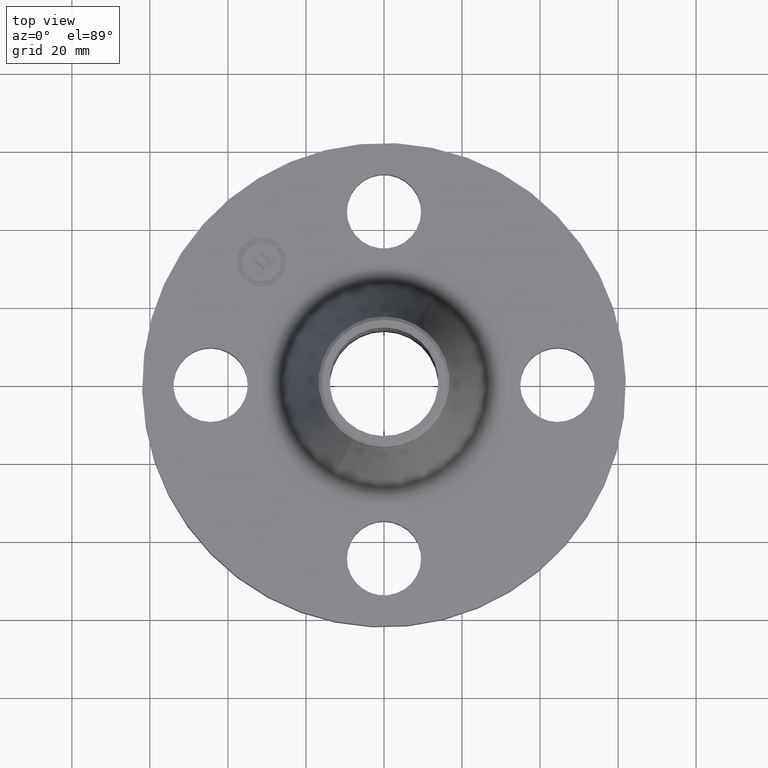
[diagram: clean part render]
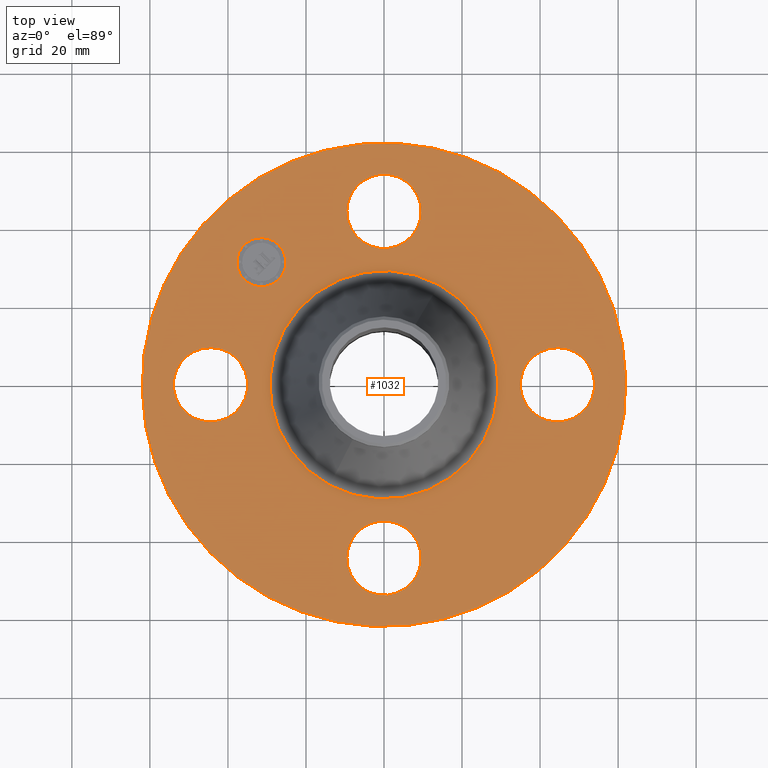
[diagram: same view with one face highlighted and labeled with its STEP entity id]
A machine part, top view. The second image highlights one B-rep face of the part: STEP entity #1032.
In plain terms, the highlighted planar face has unit normal (0, 0, -1).
Its self-contained STEP definition (entity closure, byte-faithful):
#65=AXIS2_PLACEMENT_3D('Circle Axis2P3D',#63,#64,$) ;
#97=AXIS2_PLACEMENT_3D('Circle Axis2P3D',#95,#96,$) ;
#138=AXIS2_PLACEMENT_3D('Circle Axis2P3D',#136,#137,$) ;
#162=AXIS2_PLACEMENT_3D('Circle Axis2P3D',#160,#161,$) ;
#179=AXIS2_PLACEMENT_3D('Circle Axis2P3D',#177,#178,$) ;
#214=AXIS2_PLACEMENT_3D('Circle Axis2P3D',#212,#213,$) ;
#642=AXIS2_PLACEMENT_3D('Circle Axis2P3D',#640,#641,$) ;
#654=AXIS2_PLACEMENT_3D('Circle Axis2P3D',#652,#653,$) ;
#686=AXIS2_PLACEMENT_3D('Circle Axis2P3D',#684,#685,$) ;
#698=AXIS2_PLACEMENT_3D('Circle Axis2P3D',#696,#697,$) ;
#730=AXIS2_PLACEMENT_3D('Circle Axis2P3D',#728,#729,$) ;
#742=AXIS2_PLACEMENT_3D('Circle Axis2P3D',#740,#741,$) ;
#988=AXIS2_PLACEMENT_3D('Plane Axis2P3D',#985,#986,#987) ;
#1016=AXIS2_PLACEMENT_3D('Circle Axis2P3D',#1014,#1015,$) ;
#1025=AXIS2_PLACEMENT_3D('Circle Axis2P3D',#1023,#1024,$) ;
#46=CARTESIAN_POINT('Vertex',(-0.32909346071,1.92978457698,0.620000000002)) ;
#60=CARTESIAN_POINT('Vertex',(0.32909346071,1.57021542303,0.620000000002)) ;
#63=CARTESIAN_POINT('Axis2P3D Location',(0.,1.75000000001,0.620000000002)) ;
#95=CARTESIAN_POINT('Axis2P3D Location',(0.,1.75000000001,0.620000000002)) ;
#133=CARTESIAN_POINT('Vertex',(-1.1697983142,-2.14130145102,0.620000000002)) ;
#136=CARTESIAN_POINT('Axis2P3D Location',(0.,0.,0.620000000002)) ;
#140=CARTESIAN_POINT('Vertex',(1.1697983142,2.14130145102,0.620000000002)) ;
#160=CARTESIAN_POINT('Axis2P3D Location',(0.,0.,0.620000000002)) ;
#177=CARTESIAN_POINT('Axis2P3D Location',(0.,0.,0.620000000002)) ;
#181=CARTESIAN_POINT('Vertex',(0.552380621975,1.01112594624,0.620000000002)) ;
#183=CARTESIAN_POINT('Vertex',(-0.552380621975,-1.01112594624,0.620000000002)) ;
#212=CARTESIAN_POINT('Axis2P3D Location',(0.,0.,0.620000000002)) ;
#630=CARTESIAN_POINT('Vertex',(1.92978457698,0.32909346071,0.620000000002)) ;
#637=CARTESIAN_POINT('Vertex',(1.57021542303,-0.32909346071,0.620000000002)) ;
#640=CARTESIAN_POINT('Axis2P3D Location',(1.75000000001,-1.72584639625E-016,0.620000000002)) ;
#652=CARTESIAN_POINT('Axis2P3D Location',(1.75000000001,-1.72584639625E-016,0.620000000002)) ;
#674=CARTESIAN_POINT('Vertex',(-1.92978457698,-0.32909346071,0.620000000002)) ;
#681=CARTESIAN_POINT('Vertex',(-1.57021542303,0.32909346071,0.620000000002)) ;
#684=CARTESIAN_POINT('Axis2P3D Location',(-1.75000000001,-3.21469784777E-016,0.620000000002)) ;
#696=CARTESIAN_POINT('Axis2P3D Location',(-1.75000000001,-3.21469784777E-016,0.620000000002)) ;
#718=CARTESIAN_POINT('Vertex',(0.32909346071,-1.92978457698,0.620000000002)) ;
#725=CARTESIAN_POINT('Vertex',(-0.32909346071,-1.57021542303,0.620000000002)) ;
#728=CARTESIAN_POINT('Axis2P3D Location',(2.14313189852E-016,-1.75000000001,0.620000000002)) ;
#740=CARTESIAN_POINT('Axis2P3D Location',(2.14313189852E-016,-1.75000000001,0.620000000002)) ;
#985=CARTESIAN_POINT('Axis2P3D Location',(0.,2.44000000001,0.620000000002)) ;
#1014=CARTESIAN_POINT('Axis2P3D Location',(-1.23743686708,1.23743686708,0.620000000002)) ;
#1018=CARTESIAN_POINT('Vertex',(-1.41244579543,1.06242793874,0.620000000002)) ;
#1020=CARTESIAN_POINT('Vertex',(-1.06242793874,1.41244579543,0.620000000002)) ;
#1023=CARTESIAN_POINT('Axis2P3D Location',(-1.23743686708,1.23743686708,0.620000000002)) ;
#64=DIRECTION('Axis2P3D Direction',(0.,-0.,-0.0393700787402)) ;
#96=DIRECTION('Axis2P3D Direction',(0.,-0.,-0.0393700787402)) ;
#137=DIRECTION('Axis2P3D Direction',(0.,0.,-0.0393700787402)) ;
#161=DIRECTION('Axis2P3D Direction',(0.,0.,-0.0393700787402)) ;
#178=DIRECTION('Axis2P3D Direction',(0.,0.,-0.0393700787402)) ;
#213=DIRECTION('Axis2P3D Direction',(0.,0.,-0.0393700787402)) ;
#641=DIRECTION('Axis2P3D Direction',(0.,-0.,-0.0393700787402)) ;
#653=DIRECTION('Axis2P3D Direction',(0.,-0.,-0.0393700787402)) ;
#685=DIRECTION('Axis2P3D Direction',(0.,0.,-0.0393700787402)) ;
#697=DIRECTION('Axis2P3D Direction',(0.,0.,-0.0393700787402)) ;
#729=DIRECTION('Axis2P3D Direction',(-0.,0.,-0.0393700787402)) ;
#741=DIRECTION('Axis2P3D Direction',(-0.,0.,-0.0393700787402)) ;
#986=DIRECTION('Axis2P3D Direction',(0.,0.,-0.0393700787402)) ;
#987=DIRECTION('Axis2P3D XDirection',(0.0393700787402,0.,0.)) ;
#1015=DIRECTION('Axis2P3D Direction',(0.,0.,-0.0393700787402)) ;
#1024=DIRECTION('Axis2P3D Direction',(0.,0.,-0.0393700787402)) ;
#991=ORIENTED_EDGE('',*,*,#164,.F.) ;
#992=ORIENTED_EDGE('',*,*,#142,.F.) ;
#995=ORIENTED_EDGE('',*,*,#67,.T.) ;
#996=ORIENTED_EDGE('',*,*,#99,.T.) ;
#999=ORIENTED_EDGE('',*,*,#216,.T.) ;
#1000=ORIENTED_EDGE('',*,*,#185,.T.) ;
#1003=ORIENTED_EDGE('',*,*,#656,.T.) ;
#1004=ORIENTED_EDGE('',*,*,#644,.T.) ;
#1007=ORIENTED_EDGE('',*,*,#744,.T.) ;
#1008=ORIENTED_EDGE('',*,*,#732,.T.) ;
#1011=ORIENTED_EDGE('',*,*,#700,.T.) ;
#1012=ORIENTED_EDGE('',*,*,#688,.T.) ;
#1029=ORIENTED_EDGE('',*,*,#1022,.T.) ;
#1030=ORIENTED_EDGE('',*,*,#1027,.T.) ;
#997=FACE_BOUND('',#994,.T.) ;
#1001=FACE_BOUND('',#998,.T.) ;
#1005=FACE_BOUND('',#1002,.T.) ;
#1009=FACE_BOUND('',#1006,.T.) ;
#1013=FACE_BOUND('',#1010,.T.) ;
#1031=FACE_BOUND('',#1028,.T.) ;
#1032=ADVANCED_FACE('PartBody',(#993,#997,#1001,#1005,#1009,#1013,#1031),#989,.F.) ;
#66=CIRCLE('generated circle',#65,0.375000000001) ;
#98=CIRCLE('generated circle',#97,0.375000000001) ;
#139=CIRCLE('generated circle',#138,2.44000000001) ;
#163=CIRCLE('generated circle',#162,2.44000000001) ;
#180=CIRCLE('generated circle',#179,1.1521718755) ;
#215=CIRCLE('generated circle',#214,1.1521718755) ;
#643=CIRCLE('generated circle',#642,0.375000000001) ;
#655=CIRCLE('generated circle',#654,0.375000000001) ;
#687=CIRCLE('generated circle',#686,0.375000000001) ;
#699=CIRCLE('generated circle',#698,0.375000000001) ;
#731=CIRCLE('generated circle',#730,0.375000000001) ;
#743=CIRCLE('generated circle',#742,0.375000000001) ;
#1017=CIRCLE('generated circle',#1016,0.247500000001) ;
#1026=CIRCLE('generated circle',#1025,0.247500000001) ;
#67=EDGE_CURVE('',#47,#61,#66,.T.) ;
#99=EDGE_CURVE('',#61,#47,#98,.T.) ;
#142=EDGE_CURVE('',#134,#141,#139,.T.) ;
#164=EDGE_CURVE('',#141,#134,#163,.T.) ;
#185=EDGE_CURVE('',#182,#184,#180,.T.) ;
#216=EDGE_CURVE('',#184,#182,#215,.T.) ;
#644=EDGE_CURVE('',#631,#638,#643,.T.) ;
#656=EDGE_CURVE('',#638,#631,#655,.T.) ;
#688=EDGE_CURVE('',#675,#682,#687,.T.) ;
#700=EDGE_CURVE('',#682,#675,#699,.T.) ;
#732=EDGE_CURVE('',#719,#726,#731,.T.) ;
#744=EDGE_CURVE('',#726,#719,#743,.T.) ;
#1022=EDGE_CURVE('',#1019,#1021,#1017,.T.) ;
#1027=EDGE_CURVE('',#1021,#1019,#1026,.T.) ;
#990=EDGE_LOOP('',(#991,#992)) ;
#994=EDGE_LOOP('',(#995,#996)) ;
#998=EDGE_LOOP('',(#999,#1000)) ;
#1002=EDGE_LOOP('',(#1003,#1004)) ;
#1006=EDGE_LOOP('',(#1007,#1008)) ;
#1010=EDGE_LOOP('',(#1011,#1012)) ;
#1028=EDGE_LOOP('',(#1029,#1030)) ;
#993=FACE_OUTER_BOUND('',#990,.T.) ;
#989=PLANE('',#988) ;
#47=VERTEX_POINT('',#46) ;
#61=VERTEX_POINT('',#60) ;
#134=VERTEX_POINT('',#133) ;
#141=VERTEX_POINT('',#140) ;
#182=VERTEX_POINT('',#181) ;
#184=VERTEX_POINT('',#183) ;
#631=VERTEX_POINT('',#630) ;
#638=VERTEX_POINT('',#637) ;
#675=VERTEX_POINT('',#674) ;
#682=VERTEX_POINT('',#681) ;
#719=VERTEX_POINT('',#718) ;
#726=VERTEX_POINT('',#725) ;
#1019=VERTEX_POINT('',#1018) ;
#1021=VERTEX_POINT('',#1020) ;